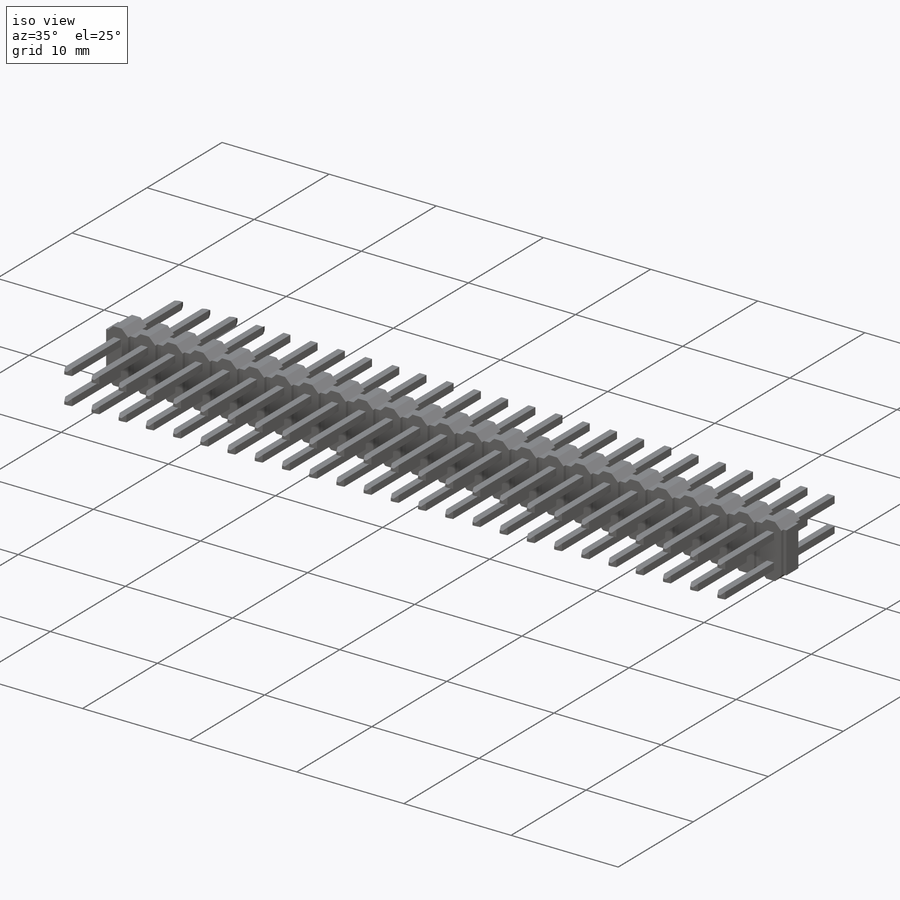
[diagram: iso view]
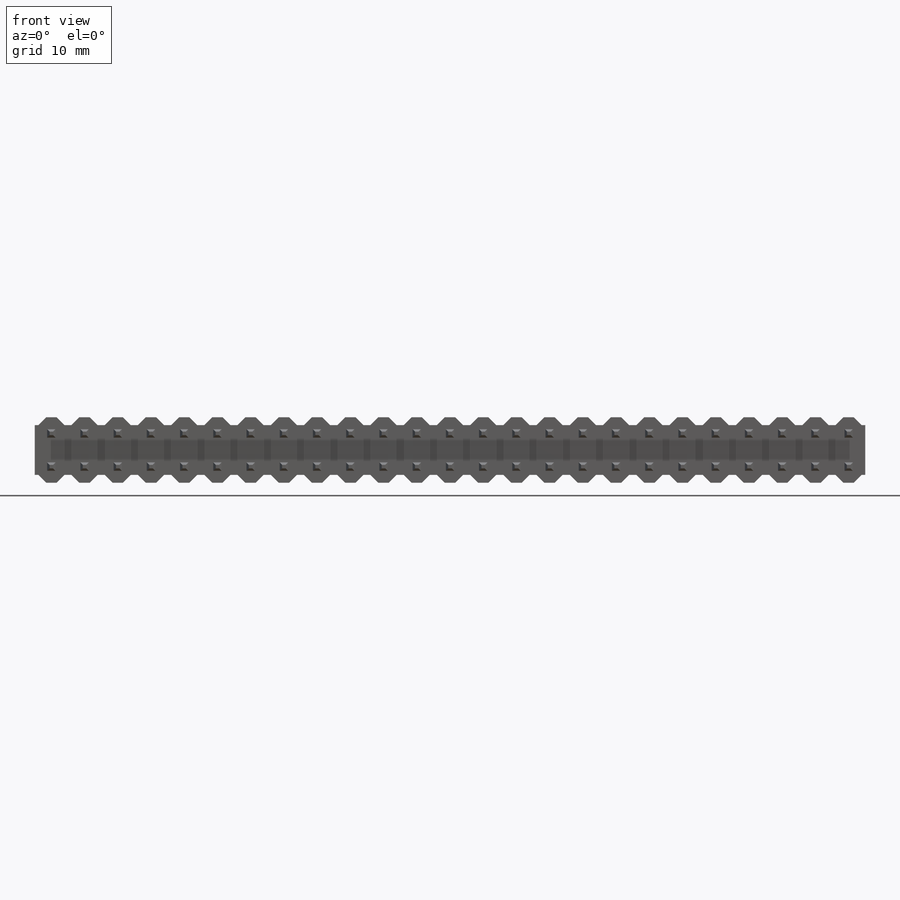
[diagram: front view]
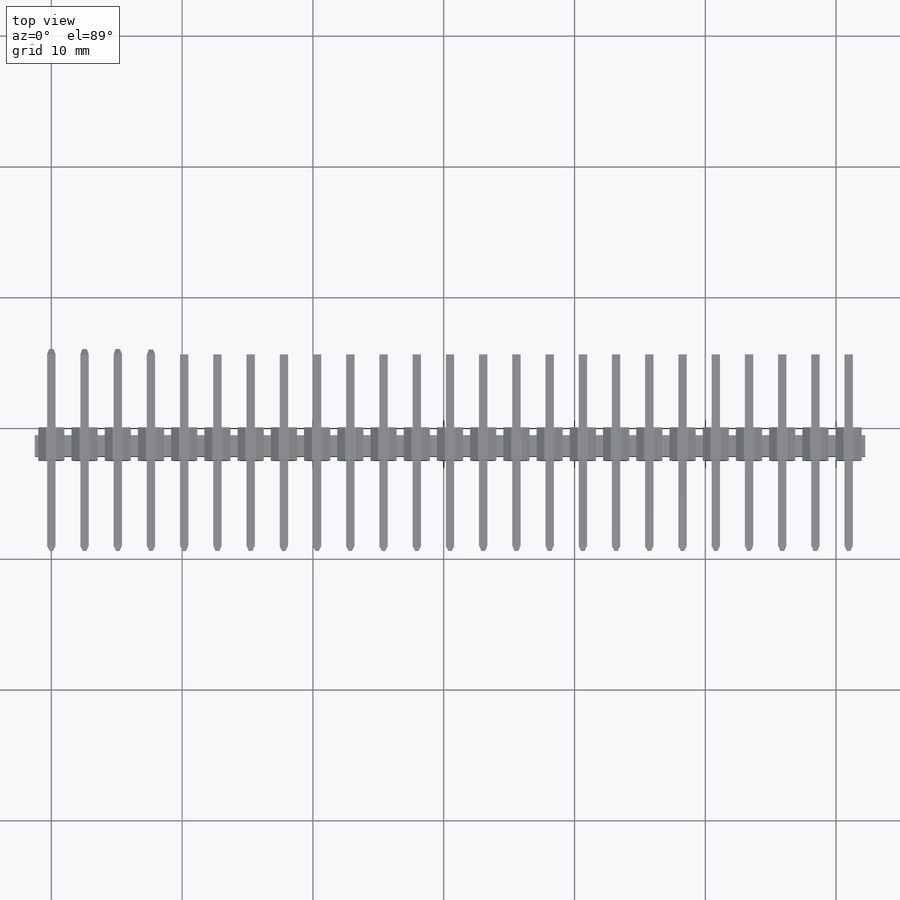
[diagram: top view]
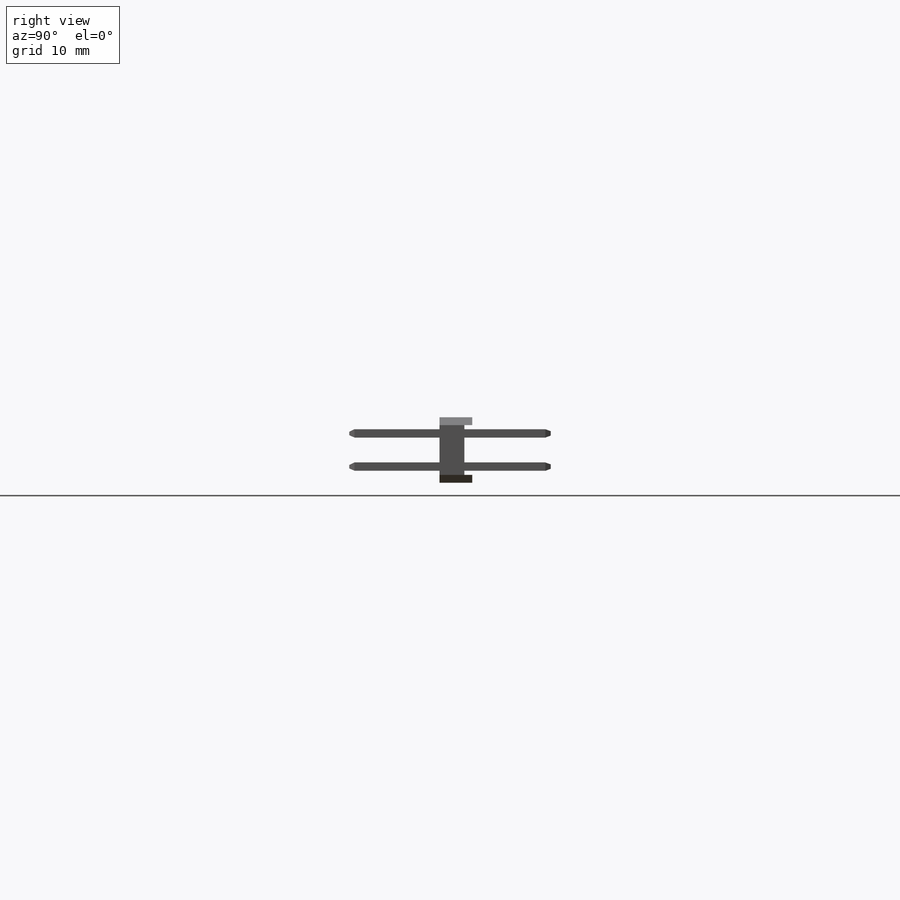
[diagram: right view]
SOLIDWORKS PART (.sldprt)
format: sldprt  version: not decoded by parser v0  size: 14,498,816 bytes
history: native  units: mm
features: sketch x5, plane x3, cut_extrude x3, extrude x2, pattern_linear x2, material x1, chamfer x1 + 1 further entry (+11 scaffold rows collapsed)
feature tree (29):
  scaffold x11  (default folders/planes/origin — collapsed)
  material  "Материал <не указан>"
  plane  "Спереди"
  plane  "Сверху"
  plane  "Справа"
  sketch  "Эскиз7"  dims[D1=2.56mm]
  "Таблица параметров"
  sketch  "Эскиз1"  dims[c1.D1=0.5mm c2.D1=0.5mm c3.D1=0.5mm c4.D1=0.5mm c5.D1=0.5mm]
  sketch  "Эскиз2"  dims[D1=0.4mm]
  extrude  "Вытянуть4"  Depth=2.5mm
  cut_extrude  "Вырез-Вытянуть1"  Depth=0.6mm
  sketch  "Эскиз8"
  extrude  "Вытянуть5"  Depth=15mm
  sketch  "Эскиз6"
  cut_extrude  "Вытянуть7"  Depth=0.3mm
  cut_extrude  "Вырез-Вытянуть2"  Depth=0.3mm
  chamfer  "Фаска1"  Distance=0.15mm Angle=70deg
  pattern_linear  "Линейный массив12"  Count1=25 Count2=1 Spacing1=2.54mm Spacing2=10mm
  pattern_linear  "Линейный массив13"  Count1=25 Count2=1 Spacing1=2.54mm Spacing2=10mm
decode coverage: 11 of 13 modeling features carry decoded parameters; 1 rows unclassified (native names shown)
note: suppression state not decoded; provenance and decode notes live in map.json
